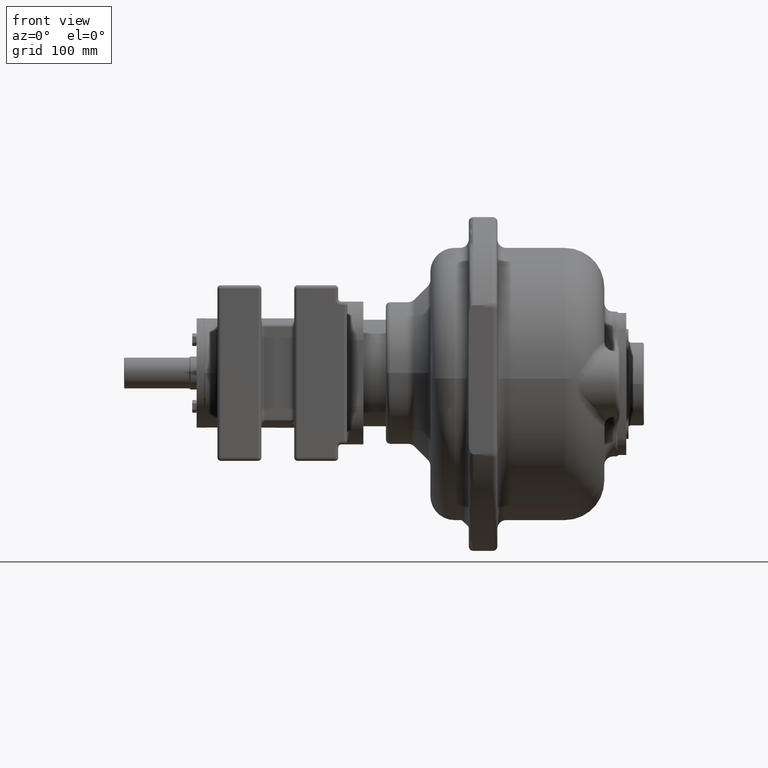
[diagram: clean part render]
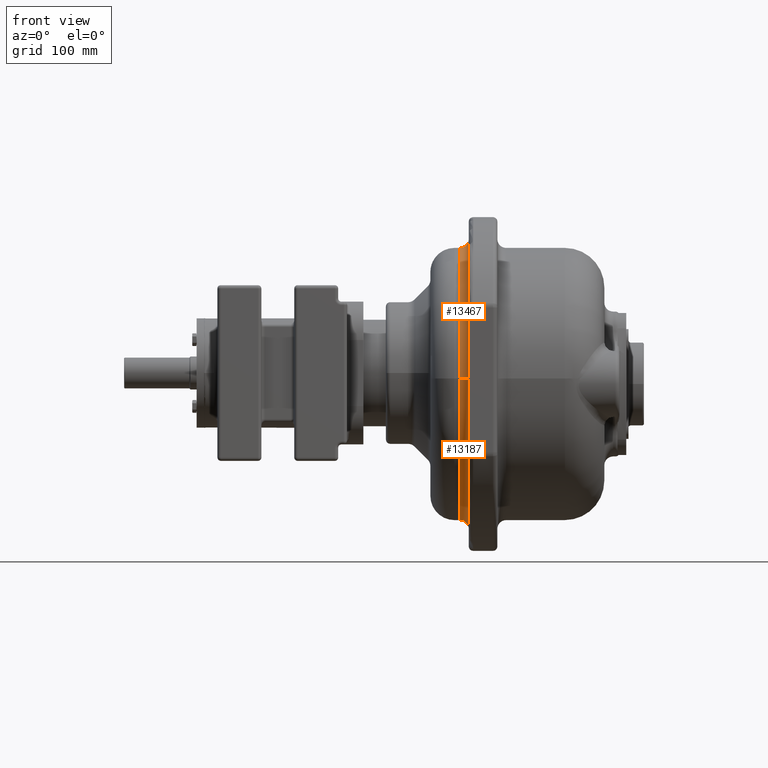
[diagram: same view with one multi-face feature highlighted, each face labeled with its STEP entity id]
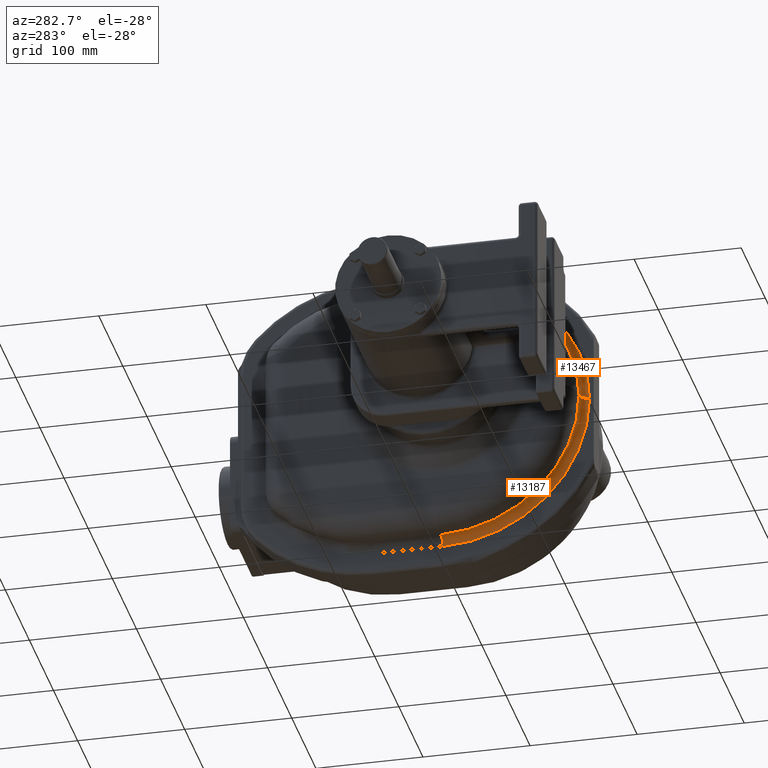
[diagram: same view with one multi-face feature highlighted, each face labeled with its STEP entity id]
A machine part, front view. The highlighted faces form ONE feature: a constant-radius fillet chain: 2 tangent blend faces with common blend radius 8 mm. The faces share edges in the B-rep.
A second angle (auxiliary view) of the same feature is appended — it is thin or edge-on in the first view.
Their STEP definitions:
[1] entity #13187 (Torus):
#2401=CARTESIAN_POINT('',(-3.95E1,5.E0,-5.E0));
#2402=DIRECTION('',(1.E0,0.E0,0.E0));
#2403=DIRECTION('',(0.E0,-1.E0,0.E0));
#2404=AXIS2_PLACEMENT_3D('',#2401,#2402,#2403);
#2489=CARTESIAN_POINT('',(-4.75E1,-1.32E2,-5.E0));
#2490=DIRECTION('',(0.E0,0.E0,-1.E0));
#2491=DIRECTION('',(0.E0,1.E0,0.E0));
#2492=AXIS2_PLACEMENT_3D('',#2489,#2490,#2491);
#2494=CARTESIAN_POINT('',(-4.75E1,5.E0,-5.E0));
#2495=DIRECTION('',(1.E0,0.E0,0.E0));
#2496=DIRECTION('',(0.E0,-1.E0,0.E0));
#2497=AXIS2_PLACEMENT_3D('',#2494,#2495,#2496);
#2520=CARTESIAN_POINT('',(-4.75E1,5.E0,-1.42E2));
#2521=DIRECTION('',(0.E0,1.E0,0.E0));
#2522=DIRECTION('',(0.E0,0.E0,1.E0));
#2523=AXIS2_PLACEMENT_3D('',#2520,#2521,#2522);
#8656=CARTESIAN_POINT('',(-4.75E1,-1.24E2,-4.999999999999E0));
#8657=CARTESIAN_POINT('',(-4.75E1,5.E0,-1.34E2));
#8658=VERTEX_POINT('',#8656);
#8659=VERTEX_POINT('',#8657);
#8660=CARTESIAN_POINT('',(-3.95E1,-1.32E2,-4.999999999999E0));
#8661=CARTESIAN_POINT('',(-3.95E1,5.E0,-1.42E2));
#8662=VERTEX_POINT('',#8660);
#8663=VERTEX_POINT('',#8661);
#13173=CARTESIAN_POINT('',(-4.75E1,5.E0,-5.E0));
#13174=DIRECTION('',(-1.E0,0.E0,0.E0));
#13175=DIRECTION('',(0.E0,-9.999999934318E-1,1.146139532422E-4));
#13176=AXIS2_PLACEMENT_3D('',#13173,#13174,#13175);
#13177=TOROIDAL_SURFACE('',#13176,1.37E2,8.E0);
#13179=ORIENTED_EDGE('',*,*,#13178,.F.);
#13181=ORIENTED_EDGE('',*,*,#13180,.T.);
#13182=ORIENTED_EDGE('',*,*,#13046,.T.);
#13184=ORIENTED_EDGE('',*,*,#13183,.F.);
#13185=EDGE_LOOP('',(#13179,#13181,#13182,#13184));
#13186=FACE_OUTER_BOUND('',#13185,.F.);
#13187=ADVANCED_FACE('',(#13186),#13177,.F.);
#2405=CIRCLE('',#2404,1.37E2);
#2493=CIRCLE('',#2492,8.E0);
#2498=CIRCLE('',#2497,1.29E2);
#2524=CIRCLE('',#2523,8.E0);
#13046=EDGE_CURVE('',#8662,#8663,#2405,.T.);
#13178=EDGE_CURVE('',#8658,#8659,#2498,.T.);
#13180=EDGE_CURVE('',#8658,#8662,#2493,.T.);
#13183=EDGE_CURVE('',#8659,#8663,#2524,.T.);
[2] entity #13467 (Torus):
#2406=CARTESIAN_POINT('',(-3.95E1,-5.E0,-5.E0));
#2407=DIRECTION('',(1.E0,0.E0,0.E0));
#2408=DIRECTION('',(0.E0,0.E0,1.E0));
#2409=AXIS2_PLACEMENT_3D('',#2406,#2407,#2408);
#2489=CARTESIAN_POINT('',(-4.75E1,-1.32E2,-5.E0));
#2490=DIRECTION('',(0.E0,0.E0,-1.E0));
#2491=DIRECTION('',(0.E0,1.E0,0.E0));
#2492=AXIS2_PLACEMENT_3D('',#2489,#2490,#2491);
#2675=CARTESIAN_POINT('',(-4.75E1,-5.E0,1.22E2));
#2676=DIRECTION('',(0.E0,-1.E0,0.E0));
#2677=DIRECTION('',(0.E0,0.E0,-1.E0));
#2678=AXIS2_PLACEMENT_3D('',#2675,#2676,#2677);
#2680=CARTESIAN_POINT('',(-4.75E1,-5.E0,-5.E0));
#2681=DIRECTION('',(1.E0,0.E0,0.E0));
#2682=DIRECTION('',(0.E0,0.E0,1.E0));
#2683=AXIS2_PLACEMENT_3D('',#2680,#2681,#2682);
#8656=CARTESIAN_POINT('',(-4.75E1,-1.24E2,-4.999999999999E0));
#8658=VERTEX_POINT('',#8656);
#8660=CARTESIAN_POINT('',(-3.95E1,-1.32E2,-4.999999999999E0));
#8662=VERTEX_POINT('',#8660);
#8696=CARTESIAN_POINT('',(-4.75E1,-5.E0,1.14E2));
#8697=VERTEX_POINT('',#8696);
#8698=CARTESIAN_POINT('',(-3.95E1,-5.E0,1.22E2));
#8699=VERTEX_POINT('',#8698);
#13455=CARTESIAN_POINT('',(-4.75E1,-5.E0,-5.E0));
#13456=DIRECTION('',(-1.E0,0.E0,0.E0));
#13457=DIRECTION('',(0.E0,1.242453778295E-4,9.999999922815E-1));
#13458=AXIS2_PLACEMENT_3D('',#13455,#13456,#13457);
#13459=TOROIDAL_SURFACE('',#13458,1.27E2,8.E0);
#13461=ORIENTED_EDGE('',*,*,#13460,.F.);
#13462=ORIENTED_EDGE('',*,*,#13450,.T.);
#13463=ORIENTED_EDGE('',*,*,#13048,.T.);
#13464=ORIENTED_EDGE('',*,*,#13180,.F.);
#13465=EDGE_LOOP('',(#13461,#13462,#13463,#13464));
#13466=FACE_OUTER_BOUND('',#13465,.F.);
#13467=ADVANCED_FACE('',(#13466),#13459,.F.);
#2410=CIRCLE('',#2409,1.27E2);
#2493=CIRCLE('',#2492,8.E0);
#2679=CIRCLE('',#2678,8.E0);
#2684=CIRCLE('',#2683,1.19E2);
#13048=EDGE_CURVE('',#8699,#8662,#2410,.T.);
#13180=EDGE_CURVE('',#8658,#8662,#2493,.T.);
#13450=EDGE_CURVE('',#8697,#8699,#2679,.T.);
#13460=EDGE_CURVE('',#8697,#8658,#2684,.T.);